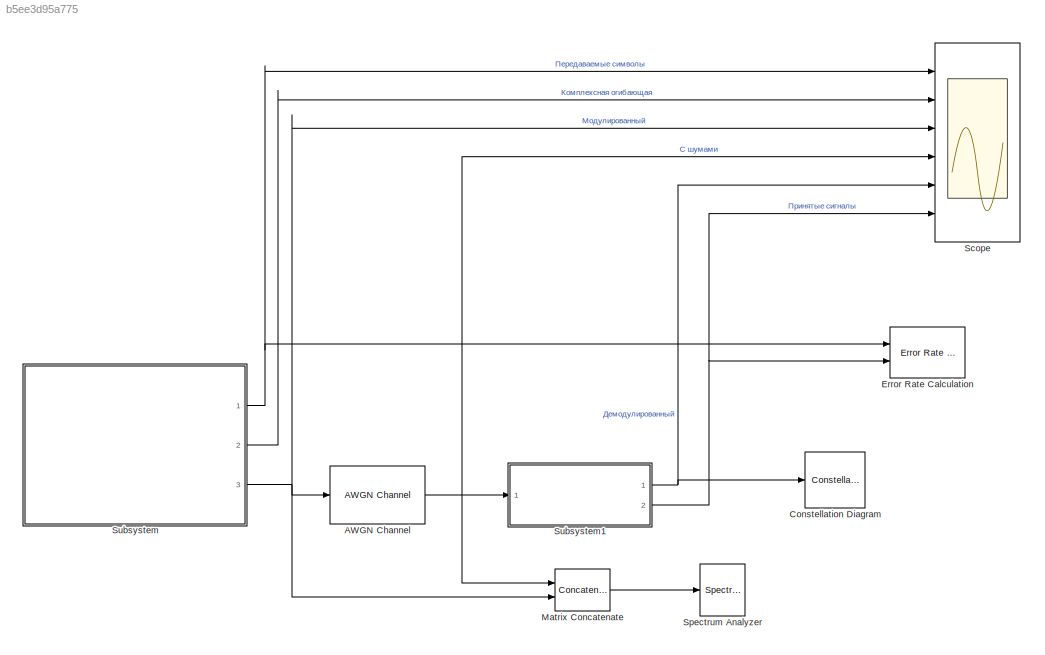
MODEL slx_b5ee3d95a775
KIND model
CONFIG AbsTol = auto
CONFIG EnableMultiTasking = off
CONFIG FixedStep = auto
CONFIG MaxStep = auto
CONFIG MinStep = auto
CONFIG RelTol = 1e-3
CONFIG SampleTimeConstraint = Unconstrained
CONFIG SolverName = VariableStepAuto
CONFIG StartTime = 0.0
CONFIG StopTime = 1
BLOCK [Reference] AWGN Channel  REF=commchan3/AWGN
Channel
  Ports = [1, 1]
  SourceBlock = commchan3/AWGN\nChannel
  SourceProductBaseCode = CM
  SourceType = AWGN Channel
  UserDataPersistent = on
BLOCK [ConstellationDiagram] Constellation Diagram
  Ports = [1]
  ScopeSpecificationString = comm.scopes.ConstellationDiagramBlockCfg('CurrentConfiguration', extmgr.ConfigurationSet(extmgr.Configuration('Core','General UI',true),extmgr.Configuration('Core','Source UI',true),extmgr.Configuration('Sources','WiredSimulink',true),extmgr.Configuration('Sources','SimulinkEvent',false),extmgr.Configuration('Sources','Simulink',false),extmgr.Configuration('Sources','File',false),extmgr.Configurat...<+2470ch>
BLOCK [Reference] Error Rate Calculation  REF=commsink2/Error Rate
Calculation
  Ports = [2]
  SourceBlock = commsink2/Error Rate\nCalculation
  SourceProductBaseCode = CM
  SourceType = Error Rate Calculation
BLOCK [Concatenate] Matrix Concatenate
  ConcatenateDimension = 2
  Mode = Multidimensional array
  Ports = [2, 1]
BLOCK [Scope] Scope
  Floating = off
  NumInputPorts = 6
  Ports = [6]
  ScopeSpecificationString = Simulink.scopes.TimeScopeBlockCfg('CurrentConfiguration', extmgr.ConfigurationSet(extmgr.Configuration('Core','General UI',true),extmgr.Configuration('Core','Source UI',true),extmgr.Configuration('Sources','WiredSimulink',true),extmgr.Configuration('Visuals','Time Domain',true,'SerializedDisplays',{struct('MinYLimReal','-0.375','MaxYLimReal','3.375','YLabelReal','','MinYLimMag','0.00000','MaxYLimM...<+6335ch>
BLOCK [SpectrumAnalyzer] Spectrum Analyzer
  Ports = [1]
  ScopeSpecificationString = spbscopes.SpectrumAnalyzerBlockCfg('CurrentConfiguration', extmgr.ConfigurationSet(extmgr.Configuration('Core','General UI',true),extmgr.Configuration('Core','Source UI',true),extmgr.Configuration('Sources','WiredSimulink',true),extmgr.Configuration('Visuals','Spectrum',true,'AxesProperties',struct('Color',{[0 0 0],[0 0 0]},'XColor',{[0.686274509803922 0.686274509803922 0.686274509803922],[0.68627...<+2112ch>
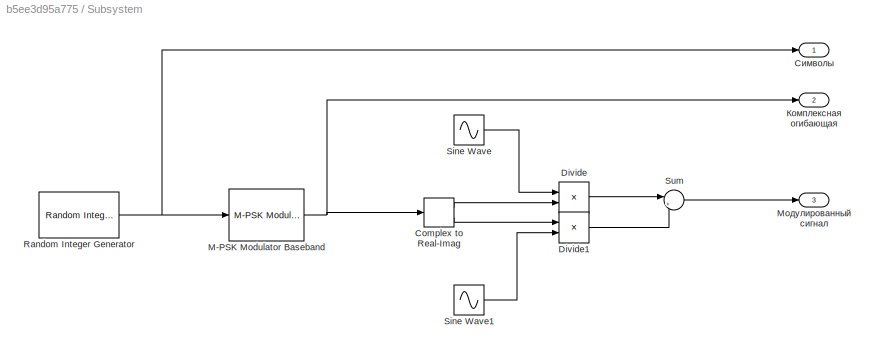
BLOCK [SubSystem] Subsystem
  Ports = [0, 3]
  RequestExecContextInheritance = off
BLOCK [ComplexToRealImag] Subsystem/Complex to Real-Imag
  Ports = [1, 2]
BLOCK [Product] Subsystem/Divide
  Inputs = **
  Ports = [2, 1]
BLOCK [Product] Subsystem/Divide1
  Inputs = **
  Ports = [2, 1]
BLOCK [Reference] Subsystem/M-PSK Modulator Baseband  REF=commdigbbndpm3/M-PSK
Modulator
Baseband
  Ports = [1, 1]
  SourceBlock = commdigbbndpm3/M-PSK\nModulator\nBaseband
  SourceProductBaseCode = CM
  SourceType = M-PSK Modulator Baseband
BLOCK [Reference] Subsystem/Random Integer Generator  REF=commrandsrc3/Random Integer
Generator
  Ports = [0, 1]
  SourceBlock = commrandsrc3/Random Integer\nGenerator
  SourceProductBaseCode = CM
  SourceType = Random Integer Generator
BLOCK [Sin] Subsystem/Sine Wave
  Frequency = 2 * pi * CarrierFrequency
  Ports = [0, 1]
  SampleTime = 1/SamplingFrequency
BLOCK [Sin] Subsystem/Sine Wave1
  Frequency = 1/CarrierFrequency
  Phase = pi / 2
  Ports = [0, 1]
  SampleTime = 1/SamplingFrequency
BLOCK [Sum] Subsystem/Sum
  Inputs = |++
  Ports = [2, 1]
BLOCK [Outport] Subsystem/Комплексная огибающая
  Port = 2
BLOCK [Outport] Subsystem/Модулированный сигнал
  Port = 3
BLOCK [Outport] Subsystem/Символы
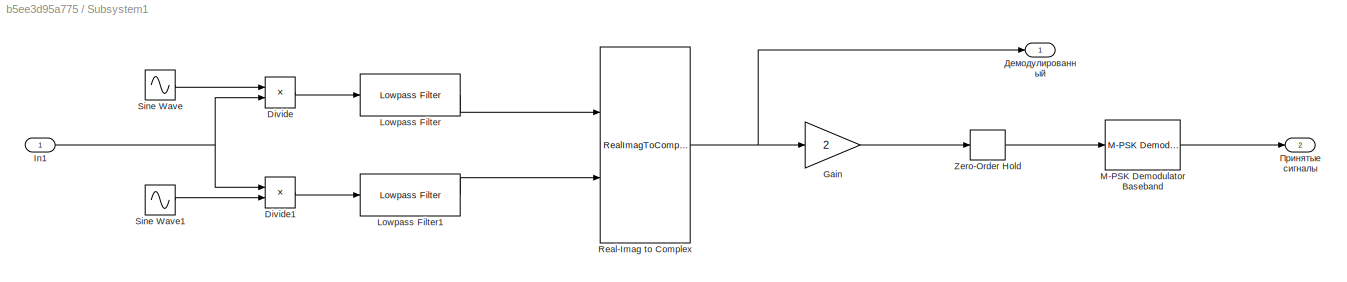
BLOCK [SubSystem] Subsystem1
  Ports = [1, 2]
  RequestExecContextInheritance = off
BLOCK [Product] Subsystem1/Divide
  Inputs = **
  Ports = [2, 1]
BLOCK [Product] Subsystem1/Divide1
  Inputs = **
  Ports = [2, 1]
BLOCK [Gain] Subsystem1/Gain
  Gain = 2
BLOCK [Inport] Subsystem1/In1
BLOCK [Reference] Subsystem1/Lowpass Filter  REF=dspfdesign/Lowpass Filter
  Ports = [1, 1]
  SourceBlock = dspfdesign/Lowpass Filter
  SourceProductBaseCode = DS
  SourceType = dsp.LowpassFilter
BLOCK [Reference] Subsystem1/Lowpass Filter1  REF=dspfdesign/Lowpass Filter
  Ports = [1, 1]
  SourceBlock = dspfdesign/Lowpass Filter
  SourceProductBaseCode = DS
  SourceType = dsp.LowpassFilter
BLOCK [Reference] Subsystem1/M-PSK Demodulator Baseband  REF=commdigbbndpm3/M-PSK
Demodulator
Baseband
  Ports = [1, 1]
  SourceBlock = commdigbbndpm3/M-PSK\nDemodulator\nBaseband
  SourceProductBaseCode = CM
  SourceType = M-PSK Demodulator Baseband
BLOCK [RealImagToComplex] Subsystem1/Real-Imag to Complex
  Ports = [2, 1]
BLOCK [Sin] Subsystem1/Sine Wave
  Frequency = 2 * pi * CarrierFrequency
  Ports = [0, 1]
  SampleTime = 1 / SamplingFrequency
BLOCK [Sin] Subsystem1/Sine Wave1
  Frequency = 2 * pi * CarrierFrequency
  Phase = pi / 2
  Ports = [0, 1]
  SampleTime = 1 / SamplingFrequency
BLOCK [ZeroOrderHold] Subsystem1/Zero-Order Hold
  SampleTime = 1/SymbolRate
BLOCK [Outport] Subsystem1/Демодулированный
BLOCK [Outport] Subsystem1/Принятые сигналы
  Port = 2
NET AWGN Channel:1 -> Matrix Concatenate:1, Scope:4, Subsystem1:1
LINE Matrix Concatenate:1 -> Spectrum Analyzer:1
LINE Subsystem/Complex to Real-Imag:1 -> Subsystem/Divide:2
LINE Subsystem/Complex to Real-Imag:2 -> Subsystem/Divide1:1
LINE Subsystem/Divide1:1 -> Subsystem/Sum:2
LINE Subsystem/Divide:1 -> Subsystem/Sum:1
NET Subsystem/M-PSK Modulator Baseband:1 -> Subsystem/Complex to Real-Imag:1, Subsystem/Комплексная огибающая:1
NET Subsystem/Random Integer Generator:1 -> Subsystem/M-PSK Modulator Baseband:1, Subsystem/Символы:1
LINE Subsystem/Sine Wave1:1 -> Subsystem/Divide1:2
LINE Subsystem/Sine Wave:1 -> Subsystem/Divide:1
LINE Subsystem/Sum:1 -> Subsystem/Модулированный сигнал:1
LINE Subsystem1/Divide1:1 -> Subsystem1/Lowpass Filter1:1
LINE Subsystem1/Divide:1 -> Subsystem1/Lowpass Filter:1
LINE Subsystem1/Gain:1 -> Subsystem1/Zero-Order Hold:1
NET Subsystem1/In1:1 -> Subsystem1/Divide1:1, Subsystem1/Divide:2
LINE Subsystem1/Lowpass Filter1:1 -> Subsystem1/Real-Imag to Complex:2
LINE Subsystem1/Lowpass Filter:1 -> Subsystem1/Real-Imag to Complex:1
LINE Subsystem1/M-PSK Demodulator Baseband:1 -> Subsystem1/Принятые сигналы:1
NET Subsystem1/Real-Imag to Complex:1 -> Subsystem1/Gain:1, Subsystem1/Демодулированный:1
LINE Subsystem1/Sine Wave1:1 -> Subsystem1/Divide1:2
LINE Subsystem1/Sine Wave:1 -> Subsystem1/Divide:1
LINE Subsystem1/Zero-Order Hold:1 -> Subsystem1/M-PSK Demodulator Baseband:1
NET Subsystem1:1 -> Constellation Diagram:1, Scope:5
NET Subsystem1:2 -> Error Rate Calculation:2, Scope:6
NET Subsystem:1 -> Error Rate Calculation:1, Scope:1
LINE Subsystem:2 -> Scope:2
NET Subsystem:3 -> AWGN Channel:1, Matrix Concatenate:2, Scope:3
note: NET lines group one-source signal fan-out (src -> all destinations, sorted); 1:1 wires keep LINE
